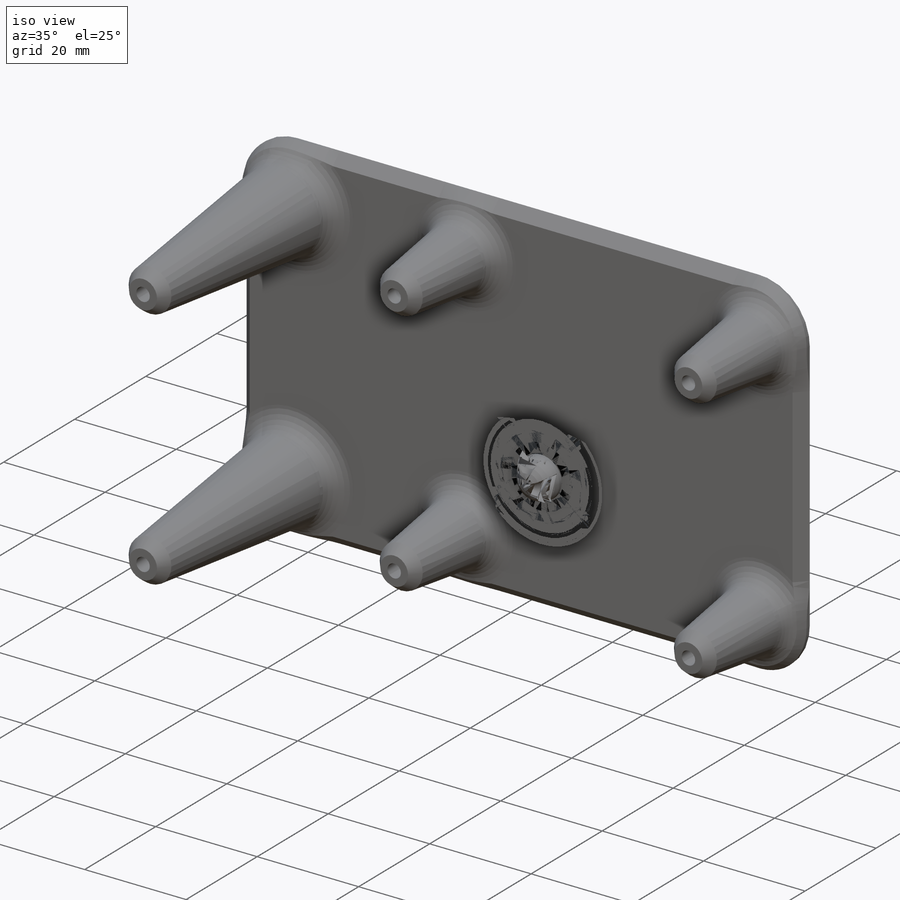
[diagram: iso view]
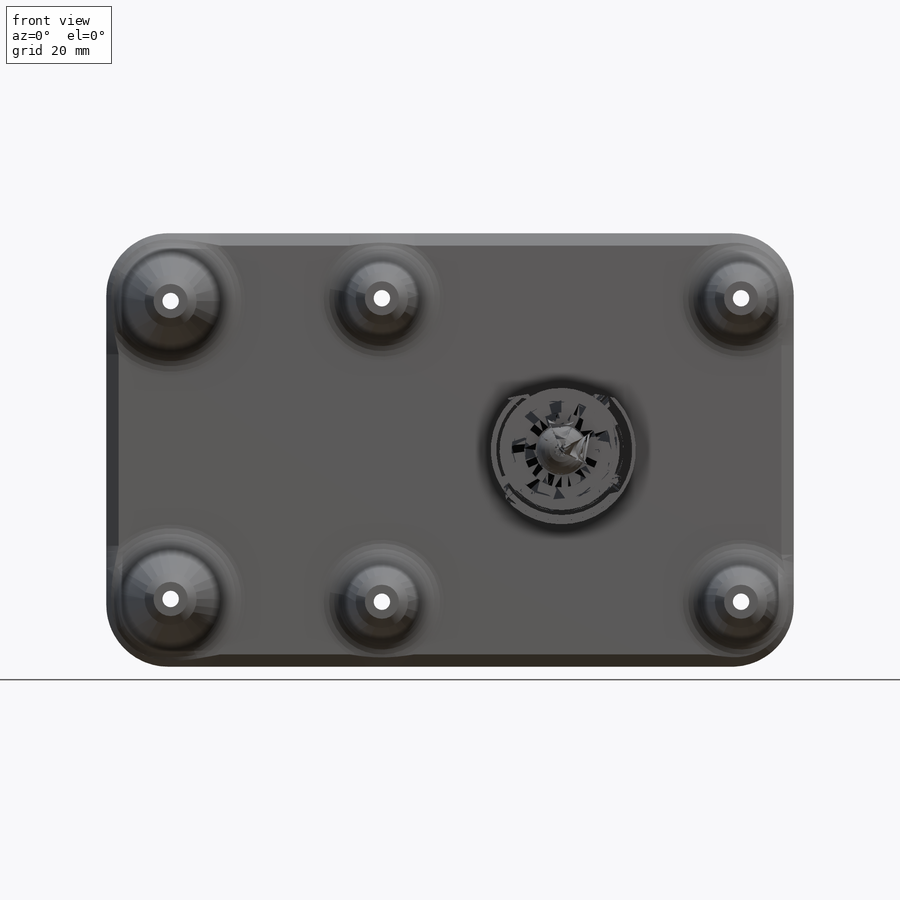
[diagram: front view]
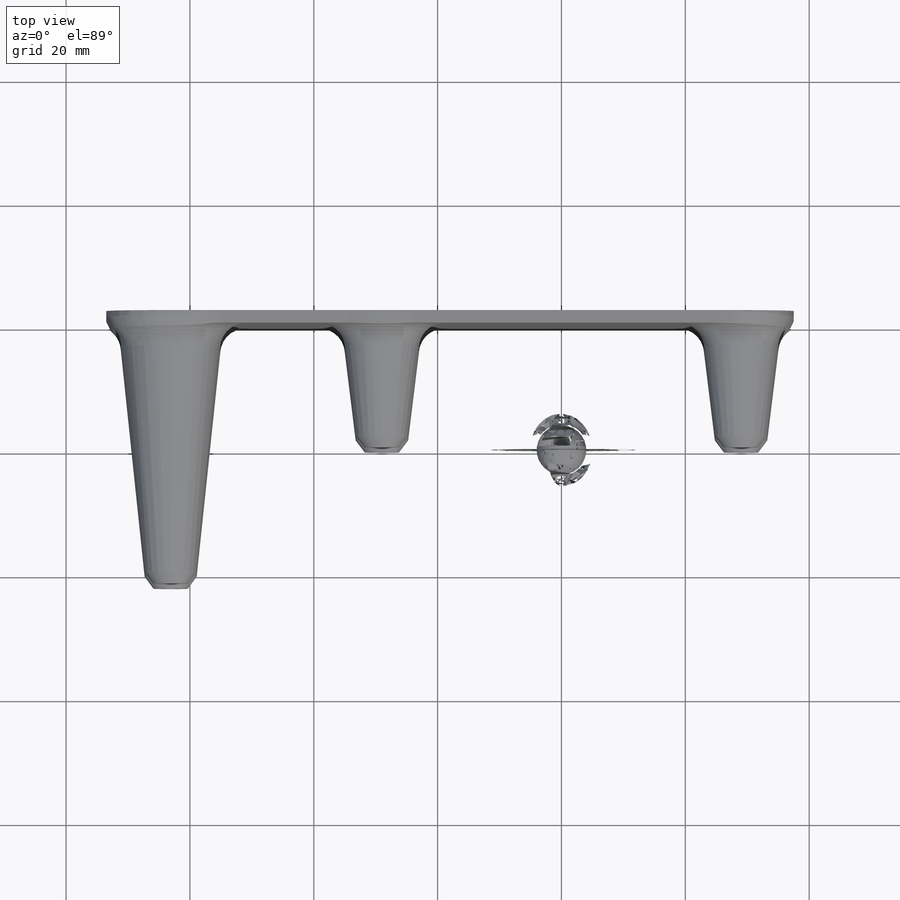
[diagram: top view]
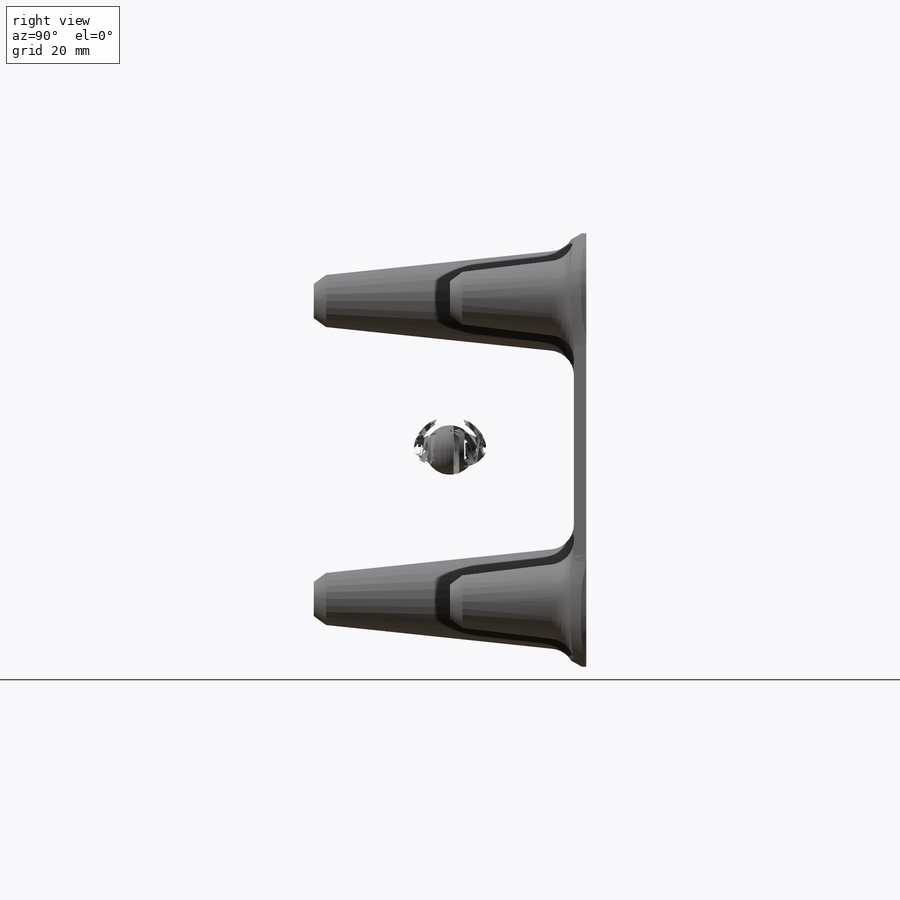
[diagram: right view]
SOLIDWORKS PART (.sldprt)
format: sldprt  version: not decoded by parser v0  size: 642,560 bytes
history: native  units: mm
features: sketch x5, extrude x3, fillet x2, chamfer x2, cut_extrude x2, material x1, plane x1 (+13 scaffold rows collapsed)
feature tree (29):
  scaffold x13  (default folders/planes/origin — collapsed)
  material  "ABS"
  sketch  "Sketch1"  dims[c1.D3=8.0mm c1.D4=8.0mm c1.D5=8.0mm c1.D1=58.0mm c1.D2=49.0mm c2.D4=92.11mm c2.D5=48.11mm c2.D6=68.0mm c2.D7=110.0mm c2.D8=18.0mm]
  extrude  "Boss-Extrude1"  Depth=20mm
  plane  "Plane1"  Offset=22mm
  extrude  "Boss-Extrude2"  [1 undecoded]
  sketch  "Sketch1<3>"  dims[D3=6.0deg]
  sketch  "Sketch5"  dims[c1.D1=2.0mm c1.D2=2.0mm c1.D3=2.0mm c2.D1=70.0mm c2.D2=111.0mm c2.D3=18.0mm]
  extrude  "Boss-Extrude4"  Depth=2mm
  fillet  "Fillet1"  Radius=4mm
  fillet  "Fillet2"  Radius=10mm
  chamfer  "Chamfer1"  Distance=2mm Angle=45deg
  chamfer  "Chamfer2"  Distance=2mm Angle=30deg
  sketch  "Sketch7"  dims[D1=2.65mm D2=2.65mm]
  cut_extrude  "Cut-Extrude1"  [1 undecoded]
  sketch  "Sketch8"  dims[D1=2.65mm]
  cut_extrude  "Cut-Extrude2"  [1 undecoded]
decode coverage: 11 of 14 modeling features carry decoded parameters
note: 3 parameter values undecoded
summary: no parameter record found for 3 features
note: suppression state not decoded; provenance and decode notes live in map.json
